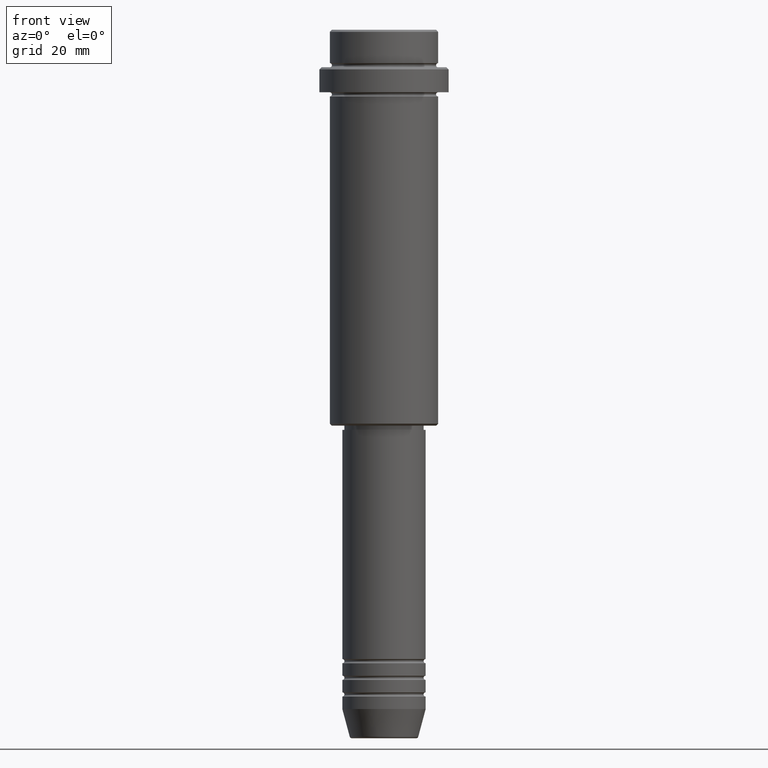
[diagram: clean part render]
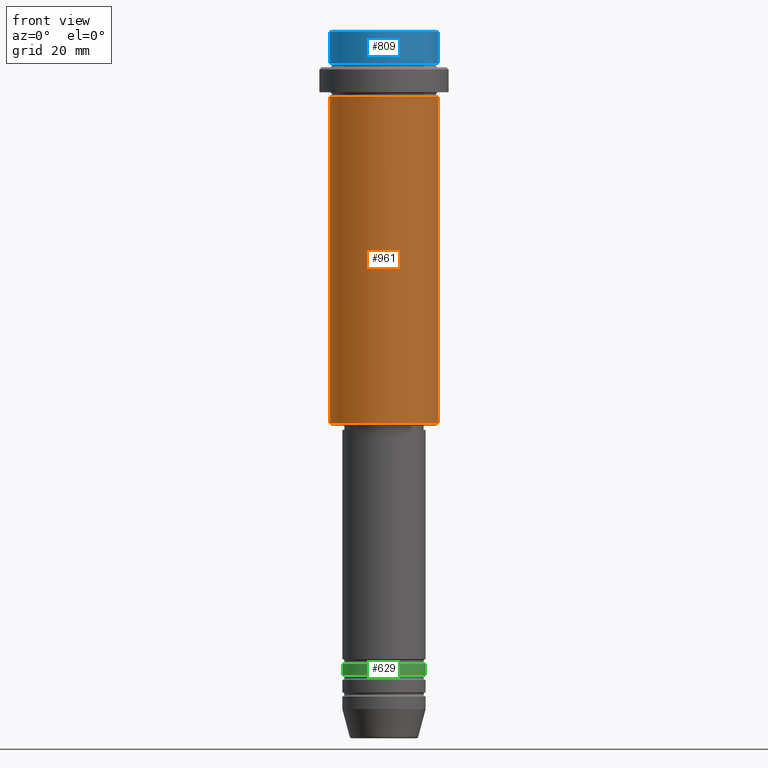
[diagram: same view with three faces highlighted in distinct colors, each labeled with its STEP entity id]
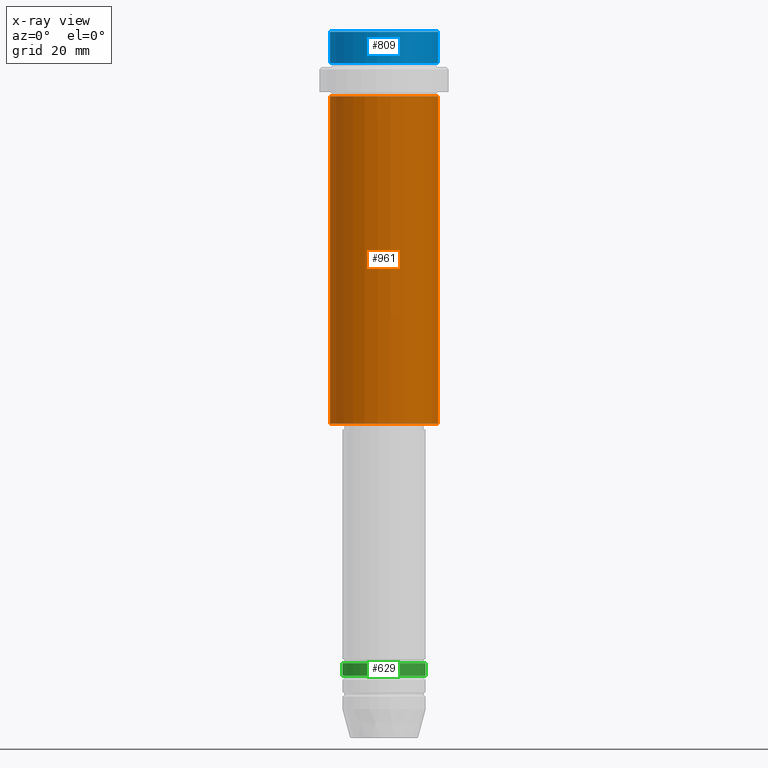
[diagram: x-ray of the same camera — body ghosted, the three highlighted faces saturated]
A machine part, front view with three faces highlighted in distinct colors.
The next image is the same camera in x-ray (body ghosted, the three faces saturated) — at least one of them is partly hidden behind the body in this view.
Their STEP definitions:

[orange] entity #961 — the highlighted cylindrical surface (partial cylindrical patch) has radius 13 mm, axis along (-0, -0, 1).
#4 = CARTESIAN_POINT ( 'NONE',  ( 13.00000000000000000, 0.000000000000000000, -94.50000000000002842 ) ) ;
#20 = DIRECTION ( 'NONE',  ( -1.000000000000000000, 0.000000000000000000, 0.000000000000000000 ) ) ;
#27 = VERTEX_POINT ( 'NONE', #592 ) ;
#67 = CYLINDRICAL_SURFACE ( 'NONE', #1173, 13.00000000000000000 ) ;
#79 = LINE ( 'NONE', #1370, #666 ) ;
#110 = EDGE_CURVE ( 'NONE', #1046, #653, #79, .T. ) ;
#181 = DIRECTION ( 'NONE',  ( -0.000000000000000000, -0.000000000000000000, 1.000000000000000000 ) ) ;
#200 = LINE ( 'NONE', #299, #1096 ) ;
#224 = DIRECTION ( 'NONE',  ( -0.000000000000000000, -0.000000000000000000, 1.000000000000000000 ) ) ;
#231 = VERTEX_POINT ( 'NONE', #463 ) ;
#259 = CIRCLE ( 'NONE', #309, 13.00000000000000000 ) ;
#299 = CARTESIAN_POINT ( 'NONE',  ( -13.00000000000000000, 1.592040838891559095E-15, 0.000000000000000000 ) ) ;
#309 = AXIS2_PLACEMENT_3D ( 'NONE', #1317, #560, #20 ) ;
#407 = ORIENTED_EDGE ( 'NONE', *, *, #110, .T. ) ;
#421 = ORIENTED_EDGE ( 'NONE', *, *, #697, .T. ) ;
#437 = CARTESIAN_POINT ( 'NONE',  ( 13.00000000000000000, 0.000000000000000000, -16.00000000000000000 ) ) ;
#463 = CARTESIAN_POINT ( 'NONE',  ( -13.00000000000000000, 1.592040838891559095E-15, -94.50000000000002842 ) ) ;
#519 = DIRECTION ( 'NONE',  ( -0.000000000000000000, -0.000000000000000000, 1.000000000000000000 ) ) ;
#560 = DIRECTION ( 'NONE',  ( -0.000000000000000000, -0.000000000000000000, 1.000000000000000000 ) ) ;
#565 = EDGE_CURVE ( 'NONE', #231, #27, #200, .T. ) ;
#577 = CIRCLE ( 'NONE', #941, 13.00000000000000000 ) ;
#592 = CARTESIAN_POINT ( 'NONE',  ( -13.00000000000000000, 1.592040838891559095E-15, -16.00000000000000000 ) ) ;
#653 = VERTEX_POINT ( 'NONE', #437 ) ;
#656 = DIRECTION ( 'NONE',  ( 1.000000000000000000, 0.000000000000000000, 0.000000000000000000 ) ) ;
#666 = VECTOR ( 'NONE', #519, 1000.000000000000000 ) ;
#697 = EDGE_CURVE ( 'NONE', #231, #1046, #259, .T. ) ;
#728 = DIRECTION ( 'NONE',  ( -0.000000000000000000, -0.000000000000000000, 1.000000000000000000 ) ) ;
#931 = DIRECTION ( 'NONE',  ( 1.000000000000000000, 0.000000000000000000, 0.000000000000000000 ) ) ;
#941 = AXIS2_PLACEMENT_3D ( 'NONE', #1310, #224, #656 ) ;
#961 = ADVANCED_FACE ( 'NONE', ( #1069 ), #67, .T. ) ;
#1046 = VERTEX_POINT ( 'NONE', #4 ) ;
#1069 = FACE_OUTER_BOUND ( 'NONE', #1105, .T. ) ;
#1090 = EDGE_CURVE ( 'NONE', #27, #653, #577, .T. ) ;
#1096 = VECTOR ( 'NONE', #728, 1000.000000000000000 ) ;
#1105 = EDGE_LOOP ( 'NONE', ( #1248, #421, #407, #1284 ) ) ;
#1154 = CARTESIAN_POINT ( 'NONE',  ( 0.000000000000000000, 0.000000000000000000, 0.000000000000000000 ) ) ;
#1173 = AXIS2_PLACEMENT_3D ( 'NONE', #1154, #181, #931 ) ;
#1248 = ORIENTED_EDGE ( 'NONE', *, *, #565, .F. ) ;
#1284 = ORIENTED_EDGE ( 'NONE', *, *, #1090, .F. ) ;
#1310 = CARTESIAN_POINT ( 'NONE',  ( 0.000000000000000000, 0.000000000000000000, -16.00000000000000000 ) ) ;
#1317 = CARTESIAN_POINT ( 'NONE',  ( 0.000000000000000000, 0.000000000000000000, -94.50000000000002842 ) ) ;
#1370 = CARTESIAN_POINT ( 'NONE',  ( 13.00000000000000000, 0.000000000000000000, 0.000000000000000000 ) ) ;

[blue] entity #809 — the highlighted cylindrical surface (partial cylindrical patch) has radius 13 mm, axis along (-0, -0, 1).
#24 = EDGE_CURVE ( 'NONE', #820, #928, #295, .T. ) ;
#41 = DIRECTION ( 'NONE',  ( -0.000000000000000000, -0.000000000000000000, 1.000000000000000000 ) ) ;
#160 = CARTESIAN_POINT ( 'NONE',  ( 0.000000000000000000, 0.000000000000000000, -7.999999999999998224 ) ) ;
#295 = LINE ( 'NONE', #620, #805 ) ;
#342 = VERTEX_POINT ( 'NONE', #1257 ) ;
#350 = EDGE_CURVE ( 'NONE', #1348, #342, #1232, .T. ) ;
#386 = EDGE_CURVE ( 'NONE', #1348, #820, #449, .T. ) ;
#432 = CARTESIAN_POINT ( 'NONE',  ( 12.99999999999999822, 0.000000000000000000, -0.4999999999999900080 ) ) ;
#440 = DIRECTION ( 'NONE',  ( 1.000000000000000000, 0.000000000000000000, 0.000000000000000000 ) ) ;
#445 = AXIS2_PLACEMENT_3D ( 'NONE', #1189, #545, #440 ) ;
#449 = CIRCLE ( 'NONE', #1412, 12.99999999999999822 ) ;
#509 = ORIENTED_EDGE ( 'NONE', *, *, #1070, .T. ) ;
#517 = VECTOR ( 'NONE', #1009, 1000.000000000000000 ) ;
#545 = DIRECTION ( 'NONE',  ( 0.000000000000000000, 0.000000000000000000, -1.000000000000000000 ) ) ;
#571 = CYLINDRICAL_SURFACE ( 'NONE', #1024, 12.99999999999999822 ) ;
#578 = FACE_OUTER_BOUND ( 'NONE', #679, .T. ) ;
#585 = DIRECTION ( 'NONE',  ( 1.000000000000000000, 0.000000000000000000, 0.000000000000000000 ) ) ;
#620 = CARTESIAN_POINT ( 'NONE',  ( 12.99999999999999822, 0.000000000000000000, 0.000000000000000000 ) ) ;
#679 = EDGE_LOOP ( 'NONE', ( #1140, #924, #731, #509 ) ) ;
#687 = CARTESIAN_POINT ( 'NONE',  ( 12.99999999999999822, 0.000000000000000000, -7.999999999999998224 ) ) ;
#731 = ORIENTED_EDGE ( 'NONE', *, *, #24, .T. ) ;
#805 = VECTOR ( 'NONE', #1387, 1000.000000000000000 ) ;
#809 = ADVANCED_FACE ( 'NONE', ( #578 ), #571, .T. ) ;
#812 = DIRECTION ( 'NONE',  ( -0.000000000000000000, -0.000000000000000000, 1.000000000000000000 ) ) ;
#820 = VERTEX_POINT ( 'NONE', #687 ) ;
#921 = CARTESIAN_POINT ( 'NONE',  ( -12.99999999999999822, 1.592040838891558898E-15, 0.000000000000000000 ) ) ;
#924 = ORIENTED_EDGE ( 'NONE', *, *, #386, .T. ) ;
#925 = CARTESIAN_POINT ( 'NONE',  ( 0.000000000000000000, 0.000000000000000000, 0.000000000000000000 ) ) ;
#928 = VERTEX_POINT ( 'NONE', #432 ) ;
#1009 = DIRECTION ( 'NONE',  ( -0.000000000000000000, -0.000000000000000000, 1.000000000000000000 ) ) ;
#1024 = AXIS2_PLACEMENT_3D ( 'NONE', #925, #812, #585 ) ;
#1070 = EDGE_CURVE ( 'NONE', #928, #342, #1216, .T. ) ;
#1140 = ORIENTED_EDGE ( 'NONE', *, *, #350, .F. ) ;
#1170 = CARTESIAN_POINT ( 'NONE',  ( -12.99999999999999822, 1.592040838891558898E-15, -7.999999999999998224 ) ) ;
#1189 = CARTESIAN_POINT ( 'NONE',  ( 0.000000000000000000, 0.000000000000000000, -0.4999999999999900080 ) ) ;
#1216 = CIRCLE ( 'NONE', #445, 12.99999999999999822 ) ;
#1232 = LINE ( 'NONE', #921, #517 ) ;
#1257 = CARTESIAN_POINT ( 'NONE',  ( -12.99999999999999822, 1.592040838891558898E-15, -0.4999999999999900080 ) ) ;
#1348 = VERTEX_POINT ( 'NONE', #1170 ) ;
#1374 = DIRECTION ( 'NONE',  ( 1.000000000000000000, 0.000000000000000000, 0.000000000000000000 ) ) ;
#1387 = DIRECTION ( 'NONE',  ( -0.000000000000000000, -0.000000000000000000, 1.000000000000000000 ) ) ;
#1412 = AXIS2_PLACEMENT_3D ( 'NONE', #160, #41, #1374 ) ;

[green] entity #629 — the highlighted cylindrical surface (partial cylindrical patch) has radius 10 mm, axis along (-0, -0, 1).
#10 = VECTOR ( 'NONE', #590, 1000.000000000000000 ) ;
#34 = EDGE_CURVE ( 'NONE', #393, #564, #612, .T. ) ;
#68 = EDGE_CURVE ( 'NONE', #393, #1112, #600, .T. ) ;
#87 = VERTEX_POINT ( 'NONE', #835 ) ;
#105 = CARTESIAN_POINT ( 'NONE',  ( 0.000000000000000000, 0.000000000000000000, -151.9999999999999147 ) ) ;
#132 = ORIENTED_EDGE ( 'NONE', *, *, #34, .F. ) ;
#156 = ORIENTED_EDGE ( 'NONE', *, *, #722, .T. ) ;
#226 = CARTESIAN_POINT ( 'NONE',  ( 0.000000000000000000, 0.000000000000000000, 0.000000000000000000 ) ) ;
#237 = DIRECTION ( 'NONE',  ( 1.000000000000000000, 0.000000000000000000, 0.000000000000000000 ) ) ;
#239 = LINE ( 'NONE', #678, #10 ) ;
#332 = ORIENTED_EDGE ( 'NONE', *, *, #1045, .F. ) ;
#334 = AXIS2_PLACEMENT_3D ( 'NONE', #417, #1400, #1152 ) ;
#393 = VERTEX_POINT ( 'NONE', #1354 ) ;
#404 = DIRECTION ( 'NONE',  ( -0.000000000000000000, -0.000000000000000000, 1.000000000000000000 ) ) ;
#417 = CARTESIAN_POINT ( 'NONE',  ( 0.000000000000000000, 0.000000000000000000, -154.9999999999999147 ) ) ;
#436 = CARTESIAN_POINT ( 'NONE',  ( 10.00000000000000000, 0.000000000000000000, -154.9999999999999147 ) ) ;
#515 = AXIS2_PLACEMENT_3D ( 'NONE', #105, #772, #237 ) ;
#552 = DIRECTION ( 'NONE',  ( 1.000000000000000000, 0.000000000000000000, 0.000000000000000000 ) ) ;
#564 = VERTEX_POINT ( 'NONE', #1289 ) ;
#590 = DIRECTION ( 'NONE',  ( -0.000000000000000000, -0.000000000000000000, 1.000000000000000000 ) ) ;
#598 = AXIS2_PLACEMENT_3D ( 'NONE', #226, #757, #552 ) ;
#600 = CIRCLE ( 'NONE', #334, 10.00000000000000000 ) ;
#612 = LINE ( 'NONE', #1261, #628 ) ;
#628 = VECTOR ( 'NONE', #404, 1000.000000000000000 ) ;
#629 = ADVANCED_FACE ( 'NONE', ( #886 ), #774, .T. ) ;
#678 = CARTESIAN_POINT ( 'NONE',  ( 10.00000000000000000, 0.000000000000000000, 0.000000000000000000 ) ) ;
#722 = EDGE_CURVE ( 'NONE', #1112, #87, #239, .T. ) ;
#757 = DIRECTION ( 'NONE',  ( -0.000000000000000000, -0.000000000000000000, 1.000000000000000000 ) ) ;
#772 = DIRECTION ( 'NONE',  ( -0.000000000000000000, -0.000000000000000000, 1.000000000000000000 ) ) ;
#774 = CYLINDRICAL_SURFACE ( 'NONE', #598, 10.00000000000000000 ) ;
#832 = ORIENTED_EDGE ( 'NONE', *, *, #68, .T. ) ;
#835 = CARTESIAN_POINT ( 'NONE',  ( 10.00000000000000000, 0.000000000000000000, -151.9999999999999147 ) ) ;
#886 = FACE_OUTER_BOUND ( 'NONE', #1085, .T. ) ;
#982 = CIRCLE ( 'NONE', #515, 10.00000000000000000 ) ;
#1045 = EDGE_CURVE ( 'NONE', #564, #87, #982, .T. ) ;
#1085 = EDGE_LOOP ( 'NONE', ( #132, #832, #156, #332 ) ) ;
#1112 = VERTEX_POINT ( 'NONE', #436 ) ;
#1152 = DIRECTION ( 'NONE',  ( 1.000000000000000000, 0.000000000000000000, 0.000000000000000000 ) ) ;
#1261 = CARTESIAN_POINT ( 'NONE',  ( -10.00000000000000000, 1.224646799147353256E-15, 0.000000000000000000 ) ) ;
#1289 = CARTESIAN_POINT ( 'NONE',  ( -10.00000000000000000, 1.224646799147353256E-15, -151.9999999999999147 ) ) ;
#1354 = CARTESIAN_POINT ( 'NONE',  ( -10.00000000000000000, 1.224646799147353256E-15, -154.9999999999999147 ) ) ;
#1400 = DIRECTION ( 'NONE',  ( -0.000000000000000000, -0.000000000000000000, 1.000000000000000000 ) ) ;